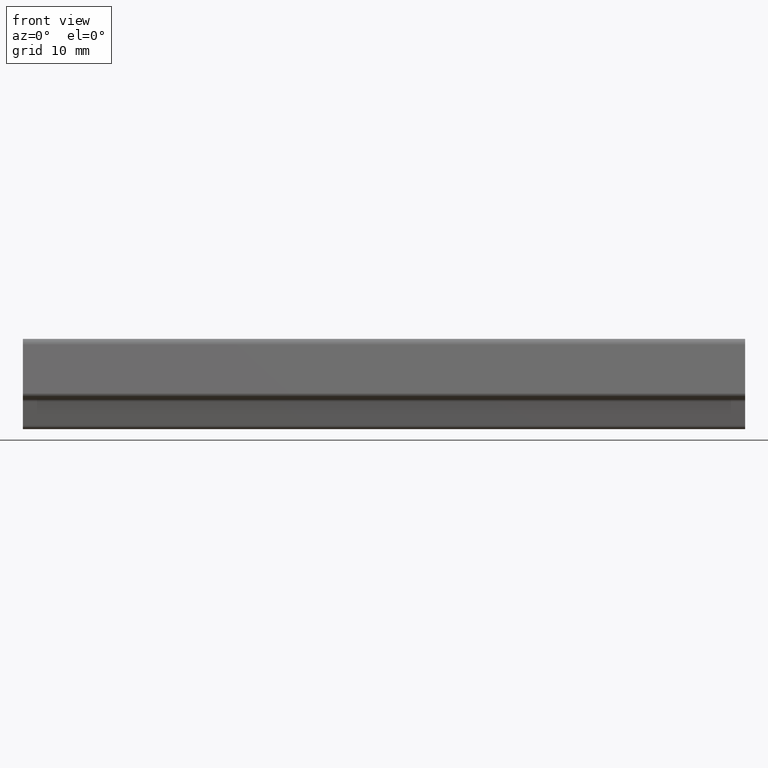
[diagram: clean part render]
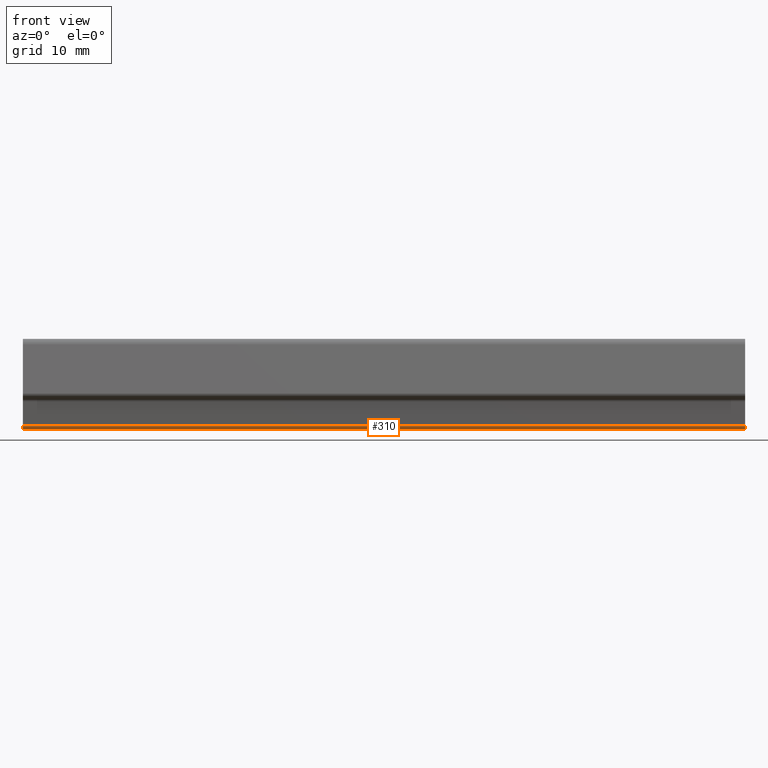
[diagram: same view with one face highlighted and labeled with its STEP entity id]
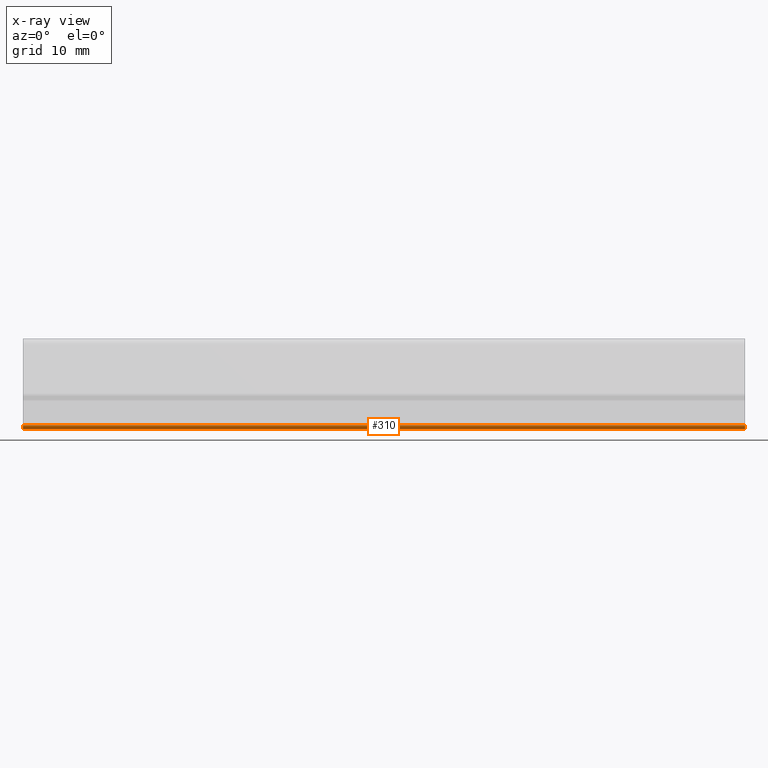
[diagram: x-ray of the same camera — body ghosted, the highlighted face saturated]
A machine part, front view. The second image highlights one B-rep face of the part: STEP entity #310.
The next image is the same camera in x-ray: the body ghosted, the highlighted face saturated — about 0% of this face is hidden behind the body in this view.
In plain terms, the highlighted cylindrical surface (edge-blend (fillet) strip) has radius 0.5 mm, axis along (-1, 0, 0).
Its self-contained STEP definition (entity closure, byte-faithful):
#252=CARTESIAN_POINT('',(0.0,-4.249085810787975,0.500000000000000));
#253=VERTEX_POINT('',#252);
#260=CARTESIAN_POINT('',(100.0,-4.249085810787975,0.500000000000000));
#261=VERTEX_POINT('',#260);
#262=CARTESIAN_POINT('',(100.0,-4.249085810787975,0.500000000000000));
#263=DIRECTION('',(-1.0,0.0,0.0));
#264=VECTOR('',#263,100.0);
#265=LINE('',#262,#264);
#266=EDGE_CURVE('',#261,#253,#265,.T.);
#278=CARTESIAN_POINT('',(100.000000009999990,-3.749085810787975,0.500000000000000));
#279=DIRECTION('',(-1.0,0.0,0.0));
#280=DIRECTION('',(0.0,0.707106781186547,0.707106781186548));
#281=AXIS2_PLACEMENT_3D('',#278,#279,#280);
#282=CYLINDRICAL_SURFACE('',#281,0.500000000000001);
#283=CARTESIAN_POINT('',(0.0,-3.749085810787975,0.0));
#284=VERTEX_POINT('',#283);
#285=CARTESIAN_POINT('',(0.0,-3.749085810787975,0.500000000000000));
#286=DIRECTION('',(1.0,0.0,0.0));
#287=DIRECTION('',(0.0,1.0,-6.123234E-017));
#288=AXIS2_PLACEMENT_3D('',#285,#286,#287);
#289=CIRCLE('',#288,0.500000000000002);
#290=EDGE_CURVE('',#253,#284,#289,.T.);
#291=ORIENTED_EDGE('',*,*,#290,.T.);
#292=CARTESIAN_POINT('',(100.0,-3.749085810787975,0.0));
#293=VERTEX_POINT('',#292);
#294=CARTESIAN_POINT('',(100.0,-3.749085810787975,0.0));
#295=DIRECTION('',(-1.0,0.0,0.0));
#296=VECTOR('',#295,100.0);
#297=LINE('',#294,#296);
#298=EDGE_CURVE('',#293,#284,#297,.T.);
#299=ORIENTED_EDGE('',*,*,#298,.F.);
#300=CARTESIAN_POINT('',(100.0,-3.749085810787975,0.500000000000000));
#301=DIRECTION('',(1.0,0.0,0.0));
#302=DIRECTION('',(0.0,1.0,-6.123234E-017));
#303=AXIS2_PLACEMENT_3D('',#300,#301,#302);
#304=CIRCLE('',#303,0.500000000000002);
#305=EDGE_CURVE('',#261,#293,#304,.T.);
#306=ORIENTED_EDGE('',*,*,#305,.F.);
#307=ORIENTED_EDGE('',*,*,#266,.T.);
#308=EDGE_LOOP('',(#291,#299,#306,#307));
#309=FACE_OUTER_BOUND('',#308,.T.);
#310=ADVANCED_FACE('',(#309),#282,.T.);